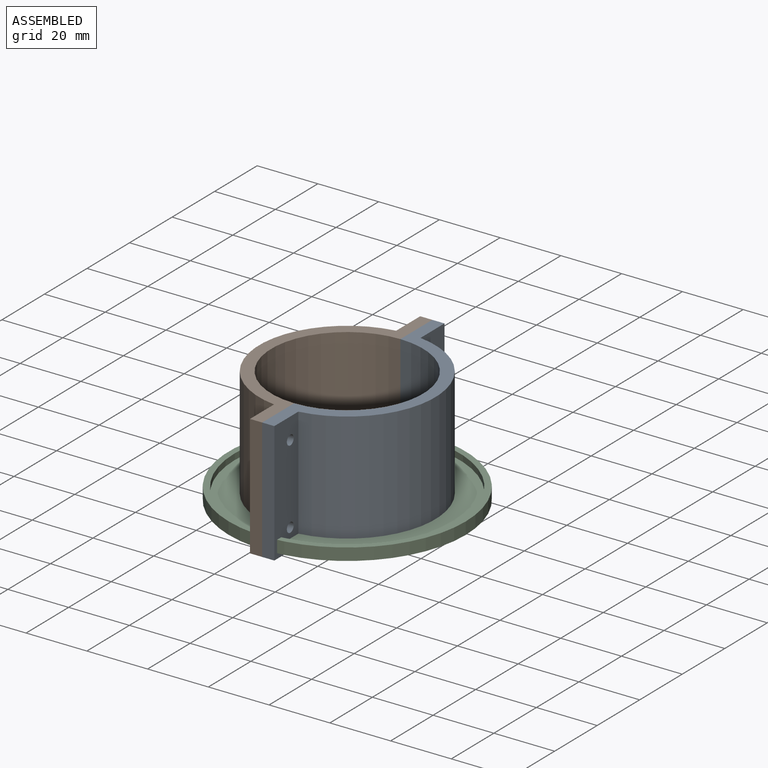
[diagram: assembled view]
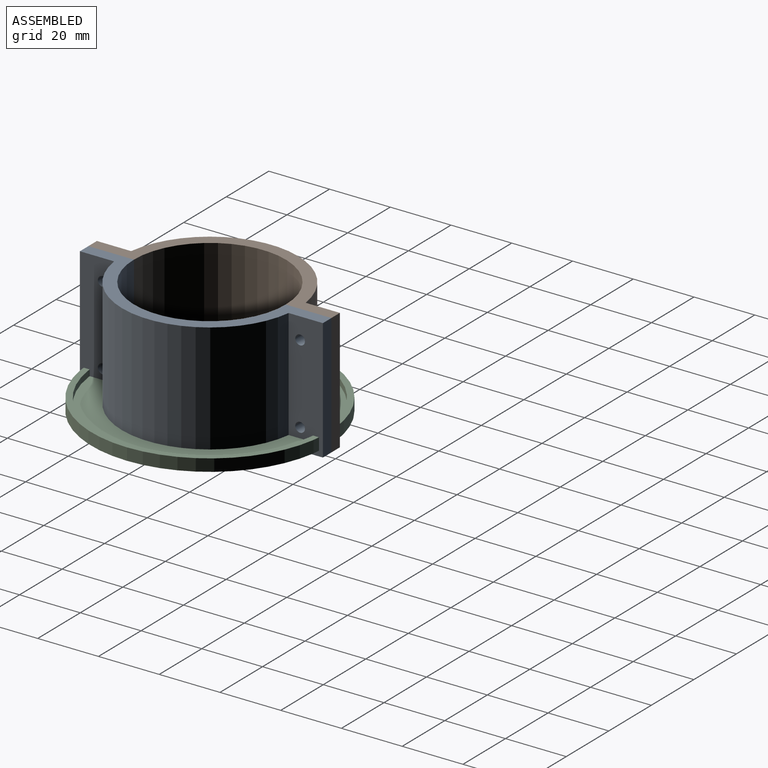
[diagram: assembled view, second angle]
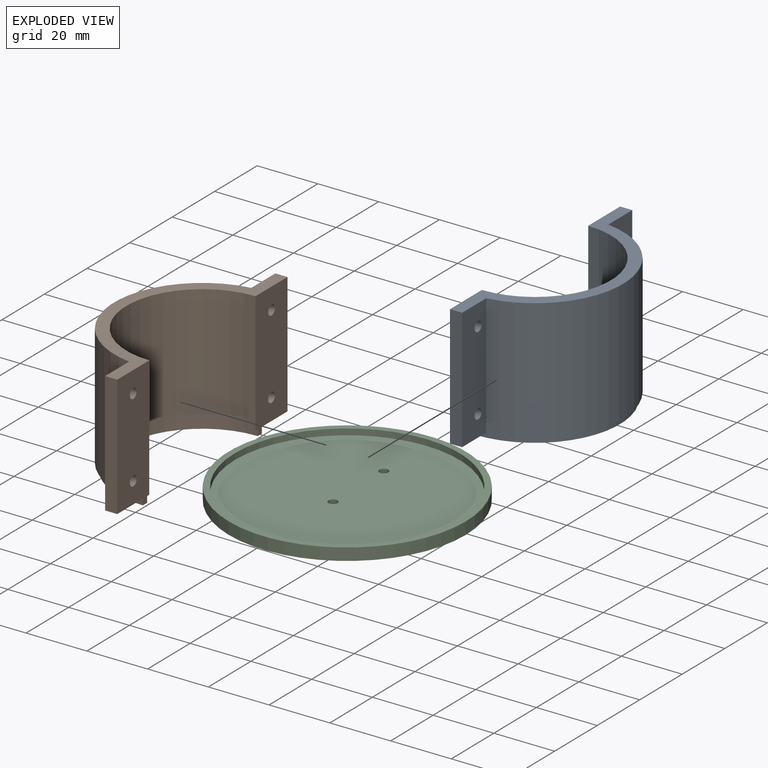
[diagram: exploded view]
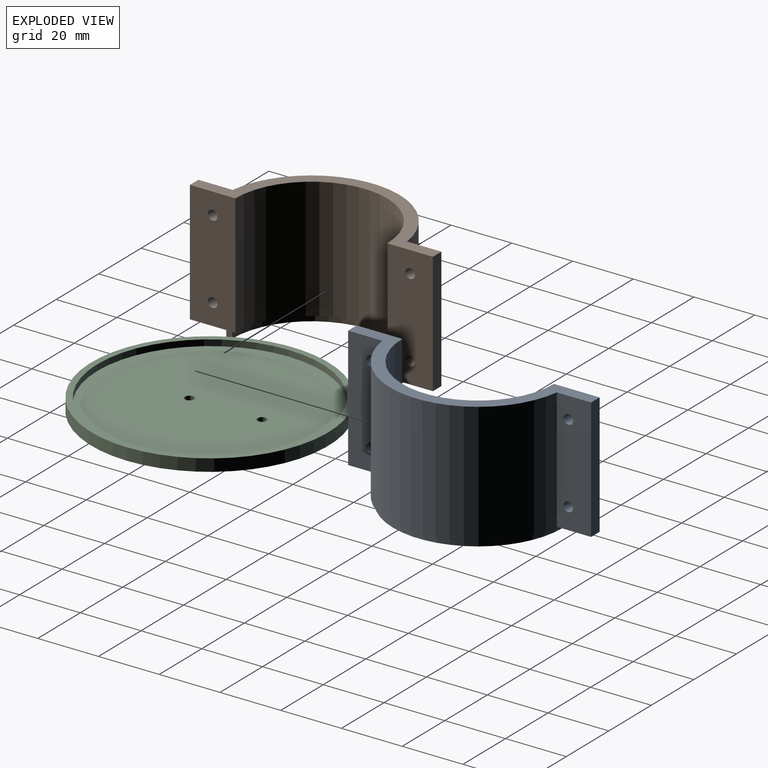
[diagram: exploded view, second angle]
ASSEMBLY  parts=3 mates=3
PART A: 18 faces, bbox 29x80x42 mm
  f0: plane 52x26mm, normal (0,0,-1), area 80.1mm2, adj f1,f2,f3,f15
  f1: plane 42x15mm, normal (-1,0,0), area 587.9mm2, adj f0,f2,f8,f9,f10,f11,f12,f15
  f2: cylinder r=25mm len=50mm, axis (0,0,-1), area 3141.6mm2, adj f0,f1,f3,f9
  f3: plane 42x15mm, normal (-1,0,0), area 587.9mm2, adj f0,f2,f4,f9,f10,f13,f14,f15
  f4: plane 40x4mm, normal (0,-1,0), area 160mm2, adj f3,f5,f9,f10
  f5: plane 40x11.28mm, normal (1,0,0), area 435mm2, adj f4,f6,f9,f10,f13,f14
  f6: cylinder r=29mm len=57.45mm, axis (0,0,-1), area 3323.2mm2, adj f5,f7,f9,f10
  f7: plane 40x11.28mm, normal (1,0,0), area 435mm2, adj f6,f8,f9,f10,f11,f12
  f8: plane 40x4mm, normal (0,1,0), area 160mm2, adj f1,f7,f9,f10
  f9: plane 80x29mm, normal (0,0,1), area 428mm2, adj f1,f2,f3,f4,f5,f6,f7,f8
  f10: plane 80x29mm, normal (0,0,-1), area 178.3mm2, adj f1,f3,f4,f5,f6,f7,f8,f16
  f11: cylinder r=1.6mm len=4mm, axis (-1,0,0), area 40.2mm2, adj f1,f7
  f12: cylinder r=1.6mm len=4mm, axis (-1,0,0), area 40.2mm2, adj f1,f7
  f13: cylinder r=1.6mm len=4mm, axis (-1,0,0), area 40.2mm2, adj f3,f5
  f14: cylinder r=1.6mm len=4mm, axis (-1,0,0), area 40.2mm2, adj f3,f5
  f15: cylinder r=26mm len=52mm, axis (0,0,1), area 163.4mm2, adj f0,f1,f3,f17
  f16: cylinder r=28mm len=56mm, axis (0,0,1), area 175.9mm2, adj f1,f3,f10,f17
  f17: plane 56x28mm, normal (0,0,-1), area 169.6mm2, adj f1,f3,f15,f16
PART B: same geometry as A
PART C: 7 faces, bbox 78x78x4 mm
  f0: cylinder r=39mm len=78mm, axis (0,0,-1), area 980.2mm2, adj f1,f2
  f1: plane 78x78mm, normal (0,0,1), area 477.5mm2, adj f0,f3
  f2: plane 78x78mm, normal (0,0,-1), area 4764.2mm2, adj f0,f5,f6
  f3: cylinder r=37mm len=74mm, axis (0,0,-1), area 465mm2, adj f1,f4
  f4: plane 74x74mm, normal (0,0,1), area 4286.7mm2, adj f3,f5,f6
  f5: cylinder r=1.5mm len=3mm, axis (0,0,-1), area 18.8mm2, adj f2,f4
  f6: cylinder r=1.5mm len=3mm, axis (0,0,-1), area 18.8mm2, adj f2,f4
PLACE A t=(-59.43,-6.93,-15.38)mm
PLACE B rot(axis=(0,0,1),180deg) t=(-59.43,-6.93,-15.38)mm
PLACE C t=(-59.43,-6.93,-13.68)mm
MATE cylindrical B.f2 <-> C.f0  axis (0,0,-1) through (-59.43,-6.93,4.62)mm
MATE cylindrical A.f14 <-> B.f11  axis (1,0,0) through (-55.43,-39.43,-8.38)mm
MATE cylindrical A.f2 <-> C.f0  axis (0,0,-1) through (-59.43,-6.93,4.62)mm
